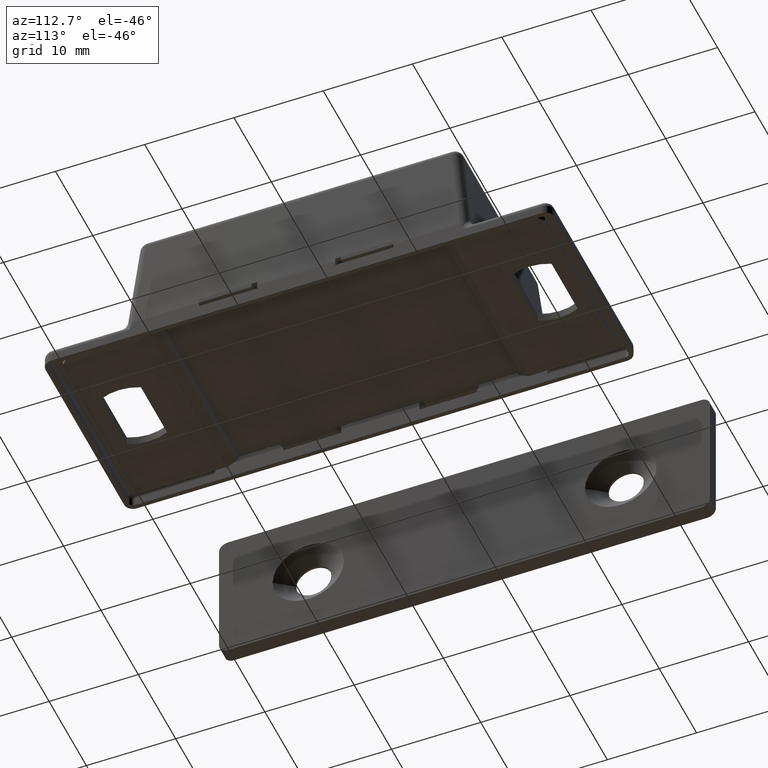
[diagram: clean part render]
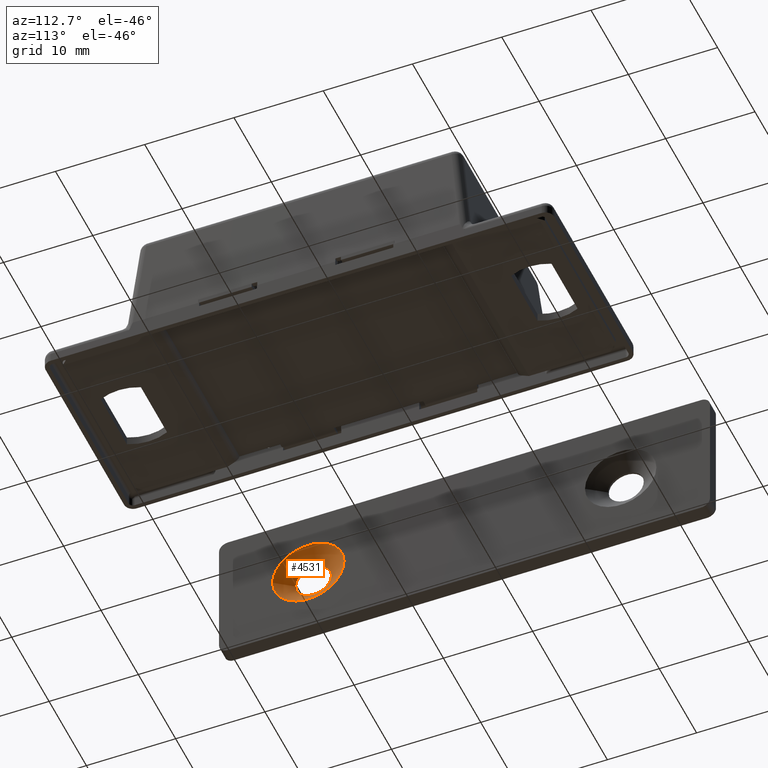
[diagram: same view with one face highlighted and labeled with its STEP entity id]
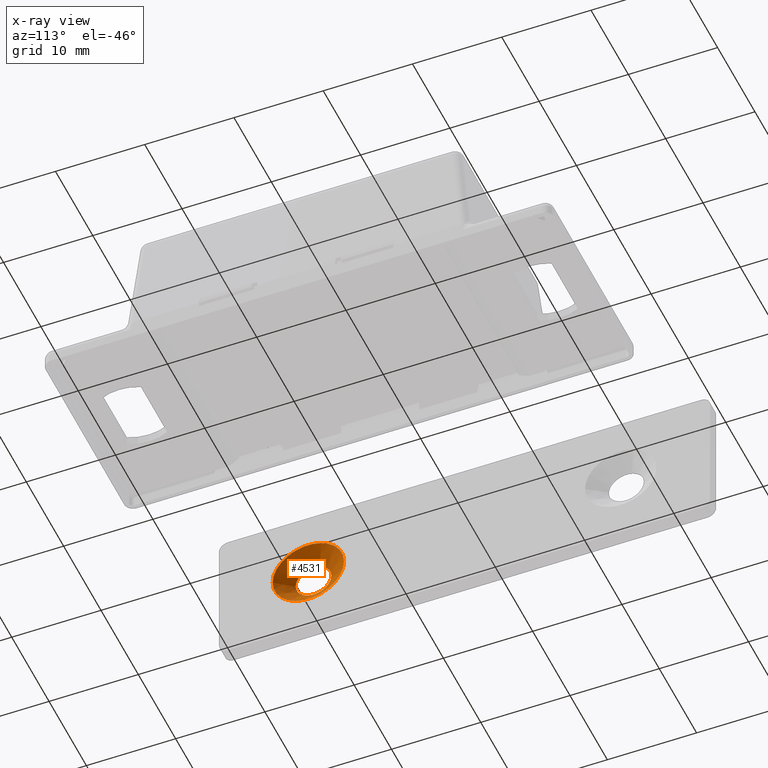
[diagram: x-ray of the same camera — body ghosted, the highlighted face saturated]
A machine part, auxiliary view. The second image highlights one B-rep face of the part: STEP entity #4531.
The next image is the same camera in x-ray: the body ghosted, the highlighted face saturated — about 0% of this face is hidden behind the body in this view.
In plain terms, the highlighted conical surface has half-angle 55 deg.
Its self-contained STEP definition (entity closure, byte-faithful):
#20=CONICAL_SURFACE('',#4929,3.,55.);
#68=FACE_BOUND('',#851,.T.);
#221=CIRCLE('',#4930,4.);
#222=CIRCLE('',#4931,2.);
#590=FACE_OUTER_BOUND('',#850,.T.);
#850=EDGE_LOOP('',(#4096));
#851=EDGE_LOOP('',(#4097));
#2183=VERTEX_POINT('',#8277);
#2184=VERTEX_POINT('',#8279);
#2825=EDGE_CURVE('',#2183,#2183,#221,.T.);
#2826=EDGE_CURVE('',#2184,#2184,#222,.T.);
#4096=ORIENTED_EDGE('',*,*,#2825,.F.);
#4097=ORIENTED_EDGE('',*,*,#2826,.F.);
#4531=ADVANCED_FACE('',(#590,#68),#20,.F.);
#4929=AXIS2_PLACEMENT_3D('',#8276,#6155,#6156);
#4930=AXIS2_PLACEMENT_3D('',#8278,#6157,#6158);
#4931=AXIS2_PLACEMENT_3D('',#8280,#6159,#6160);
#6155=DIRECTION('center_axis',(0.,0.,1.));
#6156=DIRECTION('ref_axis',(1.,0.,0.));
#6157=DIRECTION('center_axis',(0.,0.,-1.));
#6158=DIRECTION('ref_axis',(1.,0.,0.));
#6159=DIRECTION('center_axis',(0.,0.,1.));
#6160=DIRECTION('ref_axis',(1.,0.,0.));
#8276=CARTESIAN_POINT('Origin',(17.5,0.,0.89979246179029));
#8277=CARTESIAN_POINT('',(21.5,0.,1.6));
#8278=CARTESIAN_POINT('Origin',(17.5,0.,1.6));
#8279=CARTESIAN_POINT('',(19.5,0.,0.199584923580581));
#8280=CARTESIAN_POINT('Origin',(17.5,0.,0.199584923580572));